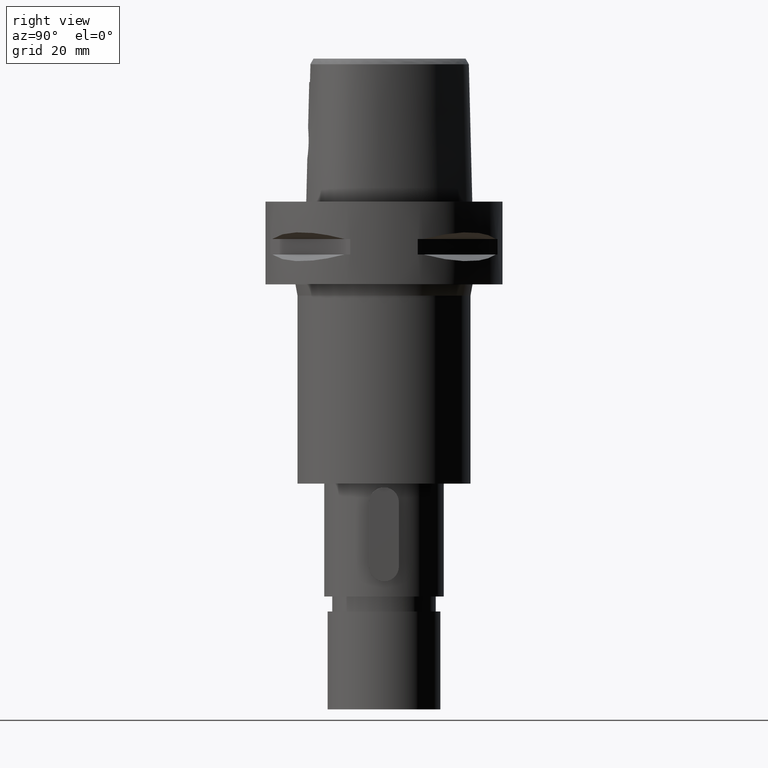
[diagram: clean part render]
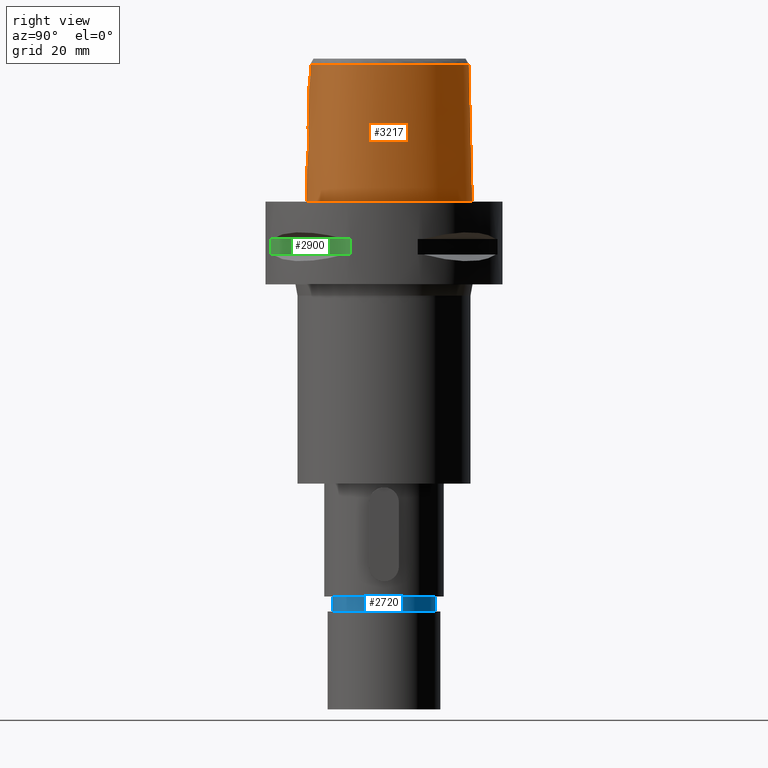
[diagram: same view with three faces highlighted in distinct colors, each labeled with its STEP entity id]
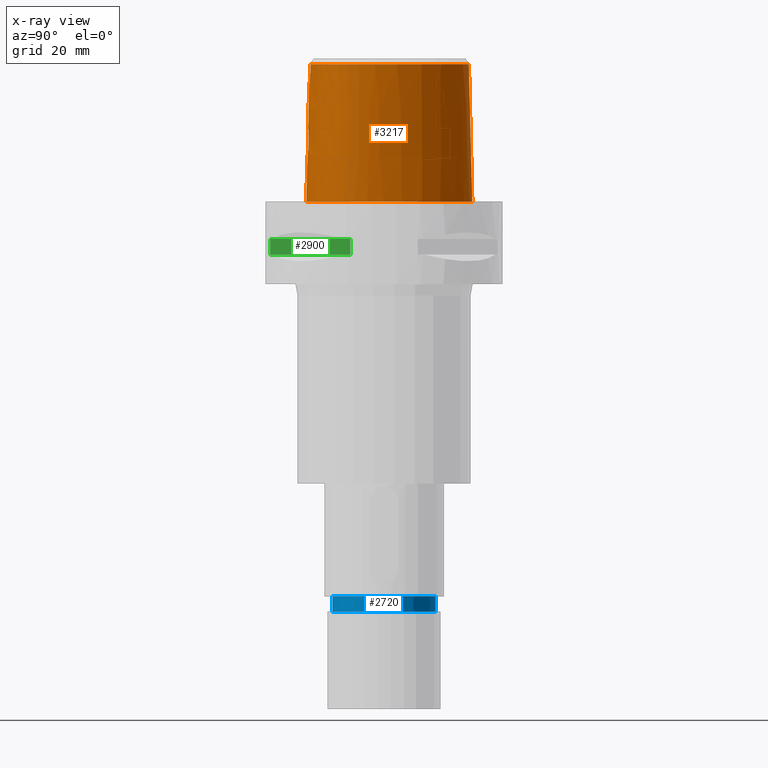
[diagram: x-ray of the same camera — body ghosted, the three highlighted faces saturated]
A machine part, right view with three faces highlighted in distinct colors.
The next image is the same camera in x-ray (body ghosted, the three faces saturated) — at least one of them is partly hidden behind the body in this view.
Their STEP definitions:

[orange] entity #3217 — the highlighted face is a freeform B-spline surface patch.
#130=CARTESIAN_POINT('',(3.637738219117E0,-1.956971420299E1,3.652185956444E1));
#140=CARTESIAN_POINT('',(-1.753181421785E-11,2.256201468012E1,
3.652186680744E1));
#141=CARTESIAN_POINT('',(4.062540555873E-1,2.256201468011E1,3.652186680744E1));
#142=CARTESIAN_POINT('',(1.216573050318E0,2.251889771860E1,3.652180802244E1));
#143=CARTESIAN_POINT('',(2.504332833959E0,2.231359579355E1,3.652187345207E1));
#144=CARTESIAN_POINT('',(3.859790465276E0,2.194987119911E1,3.652186653026E1));
#145=CARTESIAN_POINT('',(5.292823414288E0,2.140670697424E1,3.652186801805E1));
#146=CARTESIAN_POINT('',(6.819958569990E0,2.064945833142E1,3.652187263606E1));
#147=CARTESIAN_POINT('',(8.392945896568E0,1.967400029284E1,3.652186494990E1));
#148=CARTESIAN_POINT('',(9.955593008170E0,1.850440888234E1,3.652187140750E1));
#149=CARTESIAN_POINT('',(1.154632718848E1,1.710268339803E1,3.652186086915E1));
#150=CARTESIAN_POINT('',(1.325568580448E1,1.532875142400E1,3.652186215697E1));
#151=CARTESIAN_POINT('',(1.494827950634E1,1.324381054885E1,3.652187034734E1));
#152=CARTESIAN_POINT('',(1.652066409179E1,1.094297743653E1,3.652186548784E1));
#153=CARTESIAN_POINT('',(1.791898911244E1,8.488866497842E0,3.652185660321E1));
#154=CARTESIAN_POINT('',(1.909272403499E1,5.972285834336E0,3.652187125266E1));
#155=CARTESIAN_POINT('',(2.001310668239E1,3.476443396984E0,3.652186304764E1));
#156=CARTESIAN_POINT('',(2.064864158466E1,1.175991673316E0,3.652186435253E1));
#157=CARTESIAN_POINT('',(2.104401821338E1,-8.916418155083E-1,3.652186882671E1));
#158=CARTESIAN_POINT('',(2.125164398498E1,-2.813987507741E0,3.652186430428E1));
#159=CARTESIAN_POINT('',(2.128797773766E1,-4.639034045551E0,3.652187256162E1));
#160=CARTESIAN_POINT('',(2.116175335097E1,-6.315399331157E0,3.652186529946E1));
#161=CARTESIAN_POINT('',(2.090043174514E1,-7.807379882939E0,3.652186827298E1));
#162=CARTESIAN_POINT('',(2.052348070340E1,-9.146940143530E0,3.652187404411E1));
#163=CARTESIAN_POINT('',(2.004799086113E1,-1.034362614827E1,3.652187150710E1));
#164=CARTESIAN_POINT('',(1.947911968141E1,-1.142718407298E1,3.652186516528E1));
#165=CARTESIAN_POINT('',(1.879064358854E1,-1.245260829764E1,3.652185128698E1));
#166=CARTESIAN_POINT('',(1.794872451414E1,-1.346026529798E1,3.652187506744E1));
#167=CARTESIAN_POINT('',(1.693160188539E1,-1.444946700673E1,3.652186367398E1));
#168=CARTESIAN_POINT('',(1.571434713536E1,-1.541671945248E1,3.652187079176E1));
#169=CARTESIAN_POINT('',(1.426651668507E1,-1.635263780446E1,3.652186986820E1));
#170=CARTESIAN_POINT('',(1.261247700562E1,-1.721392566694E1,3.652186364726E1));
#171=CARTESIAN_POINT('',(1.079226439984E1,-1.796989231331E1,3.652187882669E1));
#172=CARTESIAN_POINT('',(8.744555956044E0,-1.863514493928E1,3.652185431055E1));
#173=CARTESIAN_POINT('',(6.323229657747E0,-1.920768959876E1,3.652188265077E1));
#174=CARTESIAN_POINT('',(4.555854921006E0,-1.947189191972E1,3.652183597715E1));
#175=CARTESIAN_POINT('',(3.637738219117E0,-1.956971420299E1,3.652185956444E1));
#247=DIRECTION('',(-1.665636293796E-9,-2.499140646182E-2,-9.996876660253E-1));
#248=VECTOR('',#247,1.225382733632E1);
#249=CARTESIAN_POINT('',(2.041042029991E-8,-1.988004246002E1,3.180000004972E1));
#250=LINE('',#249,#248);
#268=CARTESIAN_POINT('',(-8.773959669286E-13,-2.038876923348E1,1.145E1));
#273=DIRECTION('',(-5.367607158442E-13,-2.499051295390E-2,-9.996876883619E-1));
#274=VECTOR('',#273,1.145357708542E1);
#275=CARTESIAN_POINT('',(-8.773959669286E-13,-2.038876923348E1,1.145E1));
#276=LINE('',#275,#274);
#296=CARTESIAN_POINT('',(-7.025226202276E-12,-2.0675E1,7.423691291327E-14));
#297=CARTESIAN_POINT('',(9.696449193971E-1,-2.0675E1,7.423691291327E-14));
#298=CARTESIAN_POINT('',(2.869359218279E0,-2.059664892280E1,
-3.445347118589E-14));
#299=CARTESIAN_POINT('',(5.628890464365E0,-2.025948190435E1,0.E0));
#300=CARTESIAN_POINT('',(8.212389498786E0,-1.972495271961E1,0.E0));
#301=CARTESIAN_POINT('',(1.055590877096E1,-1.902992880187E1,0.E0));
#302=CARTESIAN_POINT('',(1.262648749775E1,-1.821494749687E1,0.E0));
#303=CARTESIAN_POINT('',(1.442632796445E1,-1.731409880463E1,0.E0));
#304=CARTESIAN_POINT('',(1.597826980356E1,-1.634849947215E1,0.E0));
#305=CARTESIAN_POINT('',(1.729272679183E1,-1.534476430662E1,0.E0));
#306=CARTESIAN_POINT('',(1.840631071867E1,-1.430636057348E1,0.E0));
#307=CARTESIAN_POINT('',(1.934064837732E1,-1.323816028795E1,0.E0));
#308=CARTESIAN_POINT('',(2.012478674005E1,-1.212673791652E1,0.E0));
#309=CARTESIAN_POINT('',(2.077619553208E1,-1.094577442846E1,0.E0));
#310=CARTESIAN_POINT('',(2.130480808583E1,-9.682349975254E0,0.E0));
#311=CARTESIAN_POINT('',(2.172374489730E1,-8.295275100954E0,0.E0));
#312=CARTESIAN_POINT('',(2.202311183728E1,-6.764072560865E0,0.E0));
#313=CARTESIAN_POINT('',(2.218684134189E1,-5.054739177557E0,0.E0));
#314=CARTESIAN_POINT('',(2.218812470964E1,-3.165687813018E0,0.E0));
#315=CARTESIAN_POINT('',(2.199906235253E1,-1.084924122012E0,0.E0));
#316=CARTESIAN_POINT('',(2.158831508849E1,1.183691833102E0,0.E0));
#317=CARTESIAN_POINT('',(2.092945109464E1,3.612485699932E0,0.E0));
#318=CARTESIAN_POINT('',(2.000600956625E1,6.153725564804E0,0.E0));
#319=CARTESIAN_POINT('',(1.882402336048E1,8.726443176908E0,0.E0));
#320=CARTESIAN_POINT('',(1.741188696276E1,1.123977895859E1,0.E0));
#321=CARTESIAN_POINT('',(1.581553544803E1,1.360753654784E1,0.E0));
#322=CARTESIAN_POINT('',(1.410265394990E1,1.574816738736E1,0.E0));
#323=CARTESIAN_POINT('',(1.233221734629E1,1.761876537074E1,0.E0));
#324=CARTESIAN_POINT('',(1.056748029132E1,1.919100964483E1,0.E0));
#325=CARTESIAN_POINT('',(8.844920598074E0,2.047448750360E1,0.E0));
#326=CARTESIAN_POINT('',(7.188482811189E0,2.148988621512E1,0.E0));
#327=CARTESIAN_POINT('',(5.609331832987E0,2.226541949591E1,0.E0));
#328=CARTESIAN_POINT('',(4.104370529806E0,2.283161244340E1,0.E0));
#329=CARTESIAN_POINT('',(2.671679869061E0,2.321244146092E1,0.E0));
#330=CARTESIAN_POINT('',(1.305808838521E0,2.342910934149E1,
-3.313098001873E-14));
#331=CARTESIAN_POINT('',(4.290405100522E-1,2.347499999999E1,
7.138734048340E-14));
#332=CARTESIAN_POINT('',(4.298359254040E-11,2.347499999999E1,
7.138734048340E-14));
#337=CARTESIAN_POINT('',(4.298359254040E-11,2.347499999999E1,
7.138734048340E-14));
#373=CARTESIAN_POINT('',(-7.025226202276E-12,-2.0675E1,7.423691291327E-14));
#1146=CARTESIAN_POINT('',(-8.773959669286E-13,-2.038876923348E1,1.145E1));
#1147=CARTESIAN_POINT('',(3.518410039390E-1,-2.038876923348E1,1.145E1));
#1148=CARTESIAN_POINT('',(1.056002269219E0,-2.037568214282E1,1.154238708990E1));
#1149=CARTESIAN_POINT('',(2.040385422200E0,-2.032131306427E1,1.194792367503E1));
#1150=CARTESIAN_POINT('',(2.891794145479E0,-2.024379318177E1,1.259807706062E1));
#1151=CARTESIAN_POINT('',(3.545775398700E0,-2.016065841224E1,1.344776599254E1));
#1152=CARTESIAN_POINT('',(3.957111572053E0,-2.009016928170E1,1.443938952574E1));
#1153=CARTESIAN_POINT('',(4.096327614963E0,-2.004685475213E1,1.549997055253E1));
#1154=CARTESIAN_POINT('',(3.957577704511E0,-2.003680793094E1,1.655714913641E1));
#1155=CARTESIAN_POINT('',(3.549577819491E0,-2.005726835327E1,1.754497021868E1));
#1156=CARTESIAN_POINT('',(2.899403737140E0,-2.009772754991E1,1.839411373098E1));
#1157=CARTESIAN_POINT('',(2.049555943288E0,-2.014302748467E1,1.904720420744E1));
#1158=CARTESIAN_POINT('',(1.060000729701E0,-2.017769463663E1,1.945708074101E1));
#1159=CARTESIAN_POINT('',(3.531896813643E-1,-2.018628283969E1,1.955E1));
#1160=CARTESIAN_POINT('',(0.E0,-2.018628283969E1,1.955E1));
#1165=CARTESIAN_POINT('',(3.736696120838E0,-1.967778323292E1,3.180000004973E1));
#1166=CARTESIAN_POINT('',(3.726005752326E0,-1.966575923680E1,3.232454431401E1));
#1167=CARTESIAN_POINT('',(3.704089546608E0,-1.964135163374E1,3.337368958252E1));
#1168=CARTESIAN_POINT('',(3.671106187705E0,-1.960533295284E1,3.494764256979E1));
#1169=CARTESIAN_POINT('',(3.649042743234E0,-1.958170238761E1,3.599710209057E1));
#1170=CARTESIAN_POINT('',(3.637738219117E0,-1.956971420299E1,3.652185956444E1));
#1175=DIRECTION('',(1.656446189114E-12,2.499051290963E-2,-9.996876883630E-1));
#1176=VECTOR('',#1175,3.653327657485E1);
#1177=CARTESIAN_POINT('',(-1.753181421785E-11,2.256201468012E1,
3.652186680744E1));
#1178=LINE('',#1177,#1176);
#1544=CARTESIAN_POINT('',(3.736696120838E0,-1.967778323292E1,3.180000004973E1));
#1545=CARTESIAN_POINT('',(3.322953877844E0,-1.972294683117E1,3.180000004973E1));
#1546=CARTESIAN_POINT('',(2.494485023251E0,-1.979770229043E1,3.179999998342E1));
#1547=CARTESIAN_POINT('',(1.247889117313E0,-1.986528006854E1,3.179999998343E1));
#1548=CARTESIAN_POINT('',(4.161790006858E-1,-1.988004246001E1,
3.180000004972E1));
#1549=CARTESIAN_POINT('',(2.041042029991E-8,-1.988004246002E1,
3.180000004972E1));
#1554=CARTESIAN_POINT('',(2.041042029991E-8,-1.988004246002E1,
3.180000004972E1));
#1591=VERTEX_POINT('',#130);
#1592=VERTEX_POINT('',#1165);
#1598=CARTESIAN_POINT('',(-1.753181421785E-11,2.256201468012E1,
3.652186680744E1));
#1599=VERTEX_POINT('',#1598);
#1600=VERTEX_POINT('',#337);
#1601=VERTEX_POINT('',#373);
#1602=VERTEX_POINT('',#1554);
#1603=CARTESIAN_POINT('',(0.E0,-2.018628283969E1,1.955E1));
#1604=VERTEX_POINT('',#1603);
#1605=VERTEX_POINT('',#268);
#3104=CARTESIAN_POINT('',(-6.840631435226E-1,-2.068668115881E1,
-7.304374758141E-1));
#3105=CARTESIAN_POINT('',(-6.779734153687E-1,-2.037023492517E1,
1.193047877163E1));
#3106=CARTESIAN_POINT('',(-6.718836872148E-1,-2.005378869153E1,
2.459139501907E1));
#3107=CARTESIAN_POINT('',(-6.657939590610E-1,-1.973734245789E1,
3.725231126652E1));
#3108=CARTESIAN_POINT('',(-4.561077449031E-1,-2.069106755111E1,
-7.304374758141E-1));
#3109=CARTESIAN_POINT('',(-4.520500681734E-1,-2.037458456203E1,
1.193047877163E1));
#3110=CARTESIAN_POINT('',(-4.479923914436E-1,-2.005810157295E1,
2.459139501907E1));
#3111=CARTESIAN_POINT('',(-4.439347147139E-1,-1.974161858387E1,
3.725231126652E1));
#3112=CARTESIAN_POINT('',(1.886855603002E0,-2.071358919030E1,
-7.304374758141E-1));
#3113=CARTESIAN_POINT('',(1.870063866735E0,-2.039691460076E1,1.193047877163E1));
#3114=CARTESIAN_POINT('',(1.853272130467E0,-2.008024001122E1,2.459139501907E1));
#3115=CARTESIAN_POINT('',(1.836480394200E0,-1.976356542169E1,3.725231126652E1));
#3116=CARTESIAN_POINT('',(6.344715575792E0,-2.031619964463E1,
-7.304374758141E-1));
#3117=CARTESIAN_POINT('',(6.288476595074E0,-2.000290580450E1,1.193047877163E1));
#3118=CARTESIAN_POINT('',(6.232237614356E0,-1.968961196437E1,2.459139501907E1));
#3119=CARTESIAN_POINT('',(6.175998633637E0,-1.937631812424E1,3.725231126652E1));
#3120=CARTESIAN_POINT('',(1.123887130078E1,-1.891049775533E1,
-7.304374758141E-1));
#3121=CARTESIAN_POINT('',(1.113012658676E1,-1.861140124626E1,1.193047877163E1));
#3122=CARTESIAN_POINT('',(1.102138187275E1,-1.831230473720E1,2.459139501907E1));
#3123=CARTESIAN_POINT('',(1.091263715873E1,-1.801320822813E1,3.725231126652E1));
#3124=CARTESIAN_POINT('',(1.468244496866E1,-1.723001772585E1,
-7.304374758141E-1));
#3125=CARTESIAN_POINT('',(1.452531267788E1,-1.695413756102E1,1.193047877163E1));
#3126=CARTESIAN_POINT('',(1.436818038711E1,-1.667825739619E1,2.459139501907E1));
#3127=CARTESIAN_POINT('',(1.421104809633E1,-1.640237723136E1,3.725231126652E1));
#3128=CARTESIAN_POINT('',(1.697022730794E1,-1.569280482713E1,
-7.304374758141E-1));
#3129=CARTESIAN_POINT('',(1.677374388659E1,-1.544292480278E1,1.193047877163E1));
#3130=CARTESIAN_POINT('',(1.657726046524E1,-1.519304477843E1,2.459139501907E1));
#3131=CARTESIAN_POINT('',(1.638077704389E1,-1.494316475408E1,3.725231126652E1));
#3132=CARTESIAN_POINT('',(1.858171406216E1,-1.418198046199E1,
-7.304374758141E-1));
#3133=CARTESIAN_POINT('',(1.835112160932E1,-1.396357042290E1,1.193047877163E1));
#3134=CARTESIAN_POINT('',(1.812052915649E1,-1.374516038381E1,2.459139501907E1));
#3135=CARTESIAN_POINT('',(1.788993670365E1,-1.352675034472E1,3.725231126652E1));
#3136=CARTESIAN_POINT('',(1.966427014214E1,-1.283600704374E1,
-7.304374758141E-1));
#3137=CARTESIAN_POINT('',(1.940779776146E1,-1.264961932735E1,1.193047877163E1));
#3138=CARTESIAN_POINT('',(1.915132538079E1,-1.246323161097E1,2.459139501907E1));
#3139=CARTESIAN_POINT('',(1.889485300012E1,-1.227684389459E1,3.725231126652E1));
#3140=CARTESIAN_POINT('',(2.036546124071E1,-1.175800452953E1,
-7.304374758141E-1));
#3141=CARTESIAN_POINT('',(2.009084481827E1,-1.159945466351E1,1.193047877163E1));
#3142=CARTESIAN_POINT('',(1.981622839584E1,-1.144090479749E1,2.459139501907E1));
#3143=CARTESIAN_POINT('',(1.954161197340E1,-1.128235493147E1,3.725231126652E1));
#3144=CARTESIAN_POINT('',(2.094844325400E1,-1.061175396791E1,
-7.304374758141E-1));
#3145=CARTESIAN_POINT('',(2.065879056802E1,-1.048283623245E1,1.193047877163E1));
#3146=CARTESIAN_POINT('',(2.036913788203E1,-1.035391849699E1,2.459139501907E1));
#3147=CARTESIAN_POINT('',(2.007948519604E1,-1.022500076153E1,3.725231126652E1));
#3148=CARTESIAN_POINT('',(2.157281238773E1,-9.001246193730E0,
-7.304374758141E-1));
#3149=CARTESIAN_POINT('',(2.126836750875E1,-8.910752273245E0,1.193047877163E1));
#3150=CARTESIAN_POINT('',(2.096392262977E1,-8.820258352760E0,2.459139501907E1));
#3151=CARTESIAN_POINT('',(2.065947775079E1,-8.729764432275E0,3.725231126652E1));
#3152=CARTESIAN_POINT('',(2.207548128605E1,-6.850245534757E0,
-7.304374758141E-1));
#3153=CARTESIAN_POINT('',(2.176083721035E1,-6.805026057295E0,1.193047877163E1));
#3154=CARTESIAN_POINT('',(2.144619313464E1,-6.759806579833E0,2.459139501907E1));
#3155=CARTESIAN_POINT('',(2.113154905894E1,-6.714587102371E0,3.725231126652E1));
#3156=CARTESIAN_POINT('',(2.226285556027E1,-4.100361500079E0,
-7.304374758141E-1));
#3157=CARTESIAN_POINT('',(2.194536987704E1,-4.102220498713E0,1.193047877163E1));
#3158=CARTESIAN_POINT('',(2.162788419380E1,-4.104079497347E0,2.459139501907E1));
#3159=CARTESIAN_POINT('',(2.131039851056E1,-4.105938495981E0,3.725231126652E1));
#3160=CARTESIAN_POINT('',(2.199640701090E1,-2.778990171174E-1,
-7.304374758141E-1));
#3161=CARTESIAN_POINT('',(2.168301110491E1,-3.332743870815E-1,
1.193047877163E1));
#3162=CARTESIAN_POINT('',(2.136961519892E1,-3.886497570456E-1,
2.459139501907E1));
#3163=CARTESIAN_POINT('',(2.105621929293E1,-4.440251270097E-1,
3.725231126652E1));
#3164=CARTESIAN_POINT('',(2.076670354432E1,4.663413652257E0,
-7.304374758141E-1));
#3165=CARTESIAN_POINT('',(2.046725052861E1,4.555493679790E0,1.193047877163E1));
#3166=CARTESIAN_POINT('',(2.016779751291E1,4.447573707322E0,2.459139501907E1));
#3167=CARTESIAN_POINT('',(1.986834449720E1,4.339653734854E0,3.725231126652E1));
#3168=CARTESIAN_POINT('',(1.808416037874E1,1.044089486958E1,
-7.304374758141E-1));
#3169=CARTESIAN_POINT('',(1.780867315852E1,1.028184213033E1,1.193047877163E1));
#3170=CARTESIAN_POINT('',(1.753318593829E1,1.012278939109E1,2.459139501907E1));
#3171=CARTESIAN_POINT('',(1.725769871807E1,9.963736651840E0,3.725231126652E1));
#3172=CARTESIAN_POINT('',(1.442198651611E1,1.565278599922E1,
-7.304374758141E-1));
#3173=CARTESIAN_POINT('',(1.417879765631E1,1.544741201275E1,1.193047877163E1));
#3174=CARTESIAN_POINT('',(1.393560879652E1,1.524203802628E1,2.459139501907E1));
#3175=CARTESIAN_POINT('',(1.369241993673E1,1.503666403981E1,3.725231126652E1));
#3176=CARTESIAN_POINT('',(1.075753573486E1,1.918839675360E1,
-7.304374758141E-1));
#3177=CARTESIAN_POINT('',(1.055288411421E1,1.894467594123E1,1.193047877163E1));
#3178=CARTESIAN_POINT('',(1.034823249357E1,1.870095512887E1,2.459139501907E1));
#3179=CARTESIAN_POINT('',(1.014358087292E1,1.845723431650E1,3.725231126652E1));
#3180=CARTESIAN_POINT('',(7.580410837575E0,2.133037925849E1,
-7.304374758141E-1));
#3181=CARTESIAN_POINT('',(7.420053181685E0,2.105635752793E1,1.193047877163E1));
#3182=CARTESIAN_POINT('',(7.259695525795E0,2.078233579737E1,2.459139501907E1));
#3183=CARTESIAN_POINT('',(7.099337869906E0,2.050831406681E1,3.725231126652E1));
#3184=CARTESIAN_POINT('',(5.105252914203E0,2.254305023765E1,
-7.304374758141E-1));
#3185=CARTESIAN_POINT('',(4.987110700936E0,2.224795288933E1,1.193047877163E1));
#3186=CARTESIAN_POINT('',(4.868968487670E0,2.195285554101E1,2.459139501907E1));
#3187=CARTESIAN_POINT('',(4.750826274403E0,2.165775819269E1,3.725231126652E1));
#3188=CARTESIAN_POINT('',(2.568271204731E0,2.331126237889E1,
-7.304374758141E-1));
#3189=CARTESIAN_POINT('',(2.503210923302E0,2.299958947814E1,1.193047877163E1));
#3190=CARTESIAN_POINT('',(2.438150641872E0,2.268791657740E1,2.459139501907E1));
#3191=CARTESIAN_POINT('',(2.373090360443E0,2.237624367665E1,3.725231126652E1));
#3192=CARTESIAN_POINT('',(6.155340737761E-1,2.351883497244E1,
-7.304374758141E-1));
#3193=CARTESIAN_POINT('',(5.990982059483E-1,2.320165477308E1,1.193047877163E1));
#3194=CARTESIAN_POINT('',(5.826623381205E-1,2.288447457373E1,2.459139501907E1));
#3195=CARTESIAN_POINT('',(5.662264702927E-1,2.256729437437E1,3.725231126652E1));
#3196=CARTESIAN_POINT('',(-4.812391252064E-1,2.348607175778E1,
-7.304374758141E-1));
#3197=CARTESIAN_POINT('',(-4.685452001015E-1,2.316976082928E1,
1.193047877163E1));
#3198=CARTESIAN_POINT('',(-4.558512749967E-1,2.285344990079E1,
2.459139501907E1));
#3199=CARTESIAN_POINT('',(-4.431573498918E-1,2.253713897230E1,
3.725231126652E1));
#3200=CARTESIAN_POINT('',(-7.217521644624E-1,2.347150798188E1,
-7.304374758141E-1));
#3201=CARTESIAN_POINT('',(-7.025952914E-1,2.315559754271E1,1.193047877163E1));
#3202=CARTESIAN_POINT('',(-6.834384183375E-1,2.283968710354E1,
2.459139501907E1));
#3203=CARTESIAN_POINT('',(-6.642815452751E-1,2.252377666438E1,
3.725231126652E1));
#3204=B_SPLINE_SURFACE_WITH_KNOTS('',3,3,((#3104,#3105,#3106,#3107),(#3108,
#3109,#3110,#3111),(#3112,#3113,#3114,#3115),(#3116,#3117,#3118,#3119),(#3120,
#3121,#3122,#3123),(#3124,#3125,#3126,#3127),(#3128,#3129,#3130,#3131),(#3132,
#3133,#3134,#3135),(#3136,#3137,#3138,#3139),(#3140,#3141,#3142,#3143),(#3144,
#3145,#3146,#3147),(#3148,#3149,#3150,#3151),(#3152,#3153,#3154,#3155),(#3156,
#3157,#3158,#3159),(#3160,#3161,#3162,#3163),(#3164,#3165,#3166,#3167),(#3168,
#3169,#3170,#3171),(#3172,#3173,#3174,#3175),(#3176,#3177,#3178,#3179),(#3180,
#3181,#3182,#3183),(#3184,#3185,#3186,#3187),(#3188,#3189,#3190,#3191),(#3192,
#3193,#3194,#3195),(#3196,#3197,#3198,#3199),(#3200,#3201,#3202,#3203)),
.UNSPECIFIED.,.F.,.F.,.F.,(4,1,1,1,1,1,1,1,1,1,1,1,1,1,1,1,1,1,1,1,1,1,4),(4,4),
(-8.985960173568E-3,0.E0,8.333333333339E-2,1.666666666667E-1,2.083333333333E-1,
2.5E-1,2.916666666667E-1,3.125E-1,3.333333333332E-1,3.541666666666E-1,
3.749999999999E-1,4.166666666666E-1,4.583333333332E-1,4.999999999999E-1,
5.833333333331E-1,6.666666666665E-1,7.499999999998E-1,8.333333333330E-1,
8.749999999997E-1,9.166666666664E-1,9.583333333330E-1,1.E0,1.011710456763E0),(
6.568183174432E-9,9.999996650227E-1),.UNSPECIFIED.);
#3205=ORIENTED_EDGE('',*,*,#2454,.F.);
#3206=ORIENTED_EDGE('',*,*,#2438,.F.);
#3208=ORIENTED_EDGE('',*,*,#3207,.T.);
#3209=ORIENTED_EDGE('',*,*,#2434,.F.);
#3211=ORIENTED_EDGE('',*,*,#3210,.F.);
#3212=ORIENTED_EDGE('',*,*,#1797,.T.);
#3213=ORIENTED_EDGE('',*,*,#2063,.F.);
#3214=ORIENTED_EDGE('',*,*,#2428,.T.);
#3215=EDGE_LOOP('',(#3205,#3206,#3208,#3209,#3211,#3212,#3213,#3214));
#3216=FACE_OUTER_BOUND('',#3215,.F.);
#176=B_SPLINE_CURVE_WITH_KNOTS('',3,(#140,#141,#142,#143,#144,#145,#146,#147,
#148,#149,#150,#151,#152,#153,#154,#155,#156,#157,#158,#159,#160,#161,#162,#163,
#164,#165,#166,#167,#168,#169,#170,#171,#172,#173,#174,#175),.UNSPECIFIED.,.F.,
.F.,(4,1,1,1,1,1,1,1,1,1,1,1,1,1,1,1,1,1,1,1,1,1,1,1,1,1,1,1,1,1,1,1,1,4),(0.E0,
3.030303030303E-2,6.060606060606E-2,9.090909090909E-2,1.212121212121E-1,
1.515151515152E-1,1.818181818182E-1,2.121212121212E-1,2.424242424242E-1,
2.727272727273E-1,3.030303030303E-1,3.333333333333E-1,3.636363636364E-1,
3.939393939394E-1,4.242424242424E-1,4.545454545455E-1,4.848484848485E-1,
5.151515151515E-1,5.454545454545E-1,5.757575757576E-1,6.060606060606E-1,
6.363636363636E-1,6.666666666667E-1,6.969696969697E-1,7.272727272727E-1,
7.575757575758E-1,7.878787878788E-1,8.181818181818E-1,8.484848484848E-1,
8.787878787879E-1,9.090909090909E-1,9.393939393939E-1,9.696969696970E-1,1.E0),
.UNSPECIFIED.);
#333=B_SPLINE_CURVE_WITH_KNOTS('',3,(#296,#297,#298,#299,#300,#301,#302,#303,
#304,#305,#306,#307,#308,#309,#310,#311,#312,#313,#314,#315,#316,#317,#318,#319,
#320,#321,#322,#323,#324,#325,#326,#327,#328,#329,#330,#331,#332),.UNSPECIFIED.,
.F.,.F.,(4,1,1,1,1,1,1,1,1,1,1,1,1,1,1,1,1,1,1,1,1,1,1,1,1,1,1,1,1,1,1,1,1,1,4),
(0.E0,2.941176470588E-2,5.882352941176E-2,8.823529411765E-2,1.176470588235E-1,
1.470588235294E-1,1.764705882353E-1,2.058823529412E-1,2.352941176471E-1,
2.647058823529E-1,2.941176470588E-1,3.235294117647E-1,3.529411764706E-1,
3.823529411765E-1,4.117647058824E-1,4.411764705882E-1,4.705882352941E-1,5.E-1,
5.294117647059E-1,5.588235294118E-1,5.882352941176E-1,6.176470588235E-1,
6.470588235294E-1,6.764705882353E-1,7.058823529412E-1,7.352941176471E-1,
7.647058823529E-1,7.941176470588E-1,8.235294117647E-1,8.529411764706E-1,
8.823529411765E-1,9.117647058824E-1,9.411764705882E-1,9.705882352941E-1,1.E0),
.UNSPECIFIED.);
#1161=B_SPLINE_CURVE_WITH_KNOTS('',3,(#1146,#1147,#1148,#1149,#1150,#1151,#1152,
#1153,#1154,#1155,#1156,#1157,#1158,#1159,#1160),.UNSPECIFIED.,.F.,.F.,(4,1,1,1,
1,1,1,1,1,1,1,1,4),(0.E0,8.333333333333E-2,1.666666666667E-1,2.5E-1,
3.333333333333E-1,4.166666666667E-1,5.E-1,5.833333333333E-1,6.666666666667E-1,
7.5E-1,8.333333333333E-1,9.166666666667E-1,1.E0),.UNSPECIFIED.);
#1171=B_SPLINE_CURVE_WITH_KNOTS('',3,(#1165,#1166,#1167,#1168,#1169,#1170),
.UNSPECIFIED.,.F.,.F.,(4,1,1,4),(0.E0,3.333333333333E-1,6.666666666667E-1,1.E0),
.UNSPECIFIED.);
#1550=B_SPLINE_CURVE_WITH_KNOTS('',3,(#1544,#1545,#1546,#1547,#1548,#1549),
.UNSPECIFIED.,.F.,.F.,(4,1,1,4),(0.E0,3.333333333333E-1,6.666666666667E-1,1.E0),
.UNSPECIFIED.);
#1797=EDGE_CURVE('',#1592,#1591,#1171,.T.);
#2063=EDGE_CURVE('',#1599,#1591,#176,.T.);
#2428=EDGE_CURVE('',#1599,#1600,#1178,.T.);
#2434=EDGE_CURVE('',#1602,#1604,#250,.T.);
#2438=EDGE_CURVE('',#1605,#1601,#276,.T.);
#2454=EDGE_CURVE('',#1601,#1600,#333,.T.);
#3207=EDGE_CURVE('',#1605,#1604,#1161,.T.);
#3210=EDGE_CURVE('',#1592,#1602,#1550,.T.);
#3217=ADVANCED_FACE('',(#3216),#3204,.T.);

[blue] entity #2720 — the highlighted cylindrical surface (partial cylindrical patch) has radius 13.75 mm, axis along (0, 0, -1).
#644=CARTESIAN_POINT('',(0.E0,1.307310458090E-14,-1.05E2));
#645=DIRECTION('',(0.E0,0.E0,-1.E0));
#646=DIRECTION('',(0.E0,1.E0,0.E0));
#647=AXIS2_PLACEMENT_3D('',#644,#645,#646);
#660=DIRECTION('',(0.E0,0.E0,-1.E0));
#661=VECTOR('',#660,4.E0);
#662=CARTESIAN_POINT('',(0.E0,1.375E1,-1.05E2));
#663=LINE('',#662,#661);
#667=DIRECTION('',(0.E0,0.E0,-1.E0));
#668=VECTOR('',#667,4.E0);
#669=CARTESIAN_POINT('',(0.E0,-1.375E1,-1.05E2));
#670=LINE('',#669,#668);
#698=CARTESIAN_POINT('',(0.E0,1.307310458090E-14,-1.09E2));
#699=DIRECTION('',(0.E0,0.E0,1.E0));
#700=DIRECTION('',(0.E0,-1.E0,0.E0));
#701=AXIS2_PLACEMENT_3D('',#698,#699,#700);
#1695=CARTESIAN_POINT('',(0.E0,1.375E1,-1.05E2));
#1696=CARTESIAN_POINT('',(0.E0,-1.375E1,-1.05E2));
#1697=VERTEX_POINT('',#1695);
#1698=VERTEX_POINT('',#1696);
#1699=CARTESIAN_POINT('',(0.E0,1.375E1,-1.09E2));
#1700=VERTEX_POINT('',#1699);
#1701=CARTESIAN_POINT('',(0.E0,-1.375E1,-1.09E2));
#1702=VERTEX_POINT('',#1701);
#2706=CARTESIAN_POINT('',(0.E0,1.307310458090E-14,6.75E0));
#2707=DIRECTION('',(0.E0,0.E0,-1.E0));
#2708=DIRECTION('',(0.E0,-1.E0,0.E0));
#2709=AXIS2_PLACEMENT_3D('',#2706,#2707,#2708);
#2710=CYLINDRICAL_SURFACE('',#2709,1.375E1);
#2712=ORIENTED_EDGE('',*,*,#2711,.T.);
#2714=ORIENTED_EDGE('',*,*,#2713,.F.);
#2716=ORIENTED_EDGE('',*,*,#2715,.F.);
#2717=ORIENTED_EDGE('',*,*,#2699,.F.);
#2718=EDGE_LOOP('',(#2712,#2714,#2716,#2717));
#2719=FACE_OUTER_BOUND('',#2718,.F.);
#648=CIRCLE('',#647,1.375E1);
#702=CIRCLE('',#701,1.375E1);
#2699=EDGE_CURVE('',#1697,#1698,#648,.T.);
#2711=EDGE_CURVE('',#1697,#1700,#663,.T.);
#2713=EDGE_CURVE('',#1702,#1700,#702,.T.);
#2715=EDGE_CURVE('',#1698,#1702,#670,.T.);
#2720=ADVANCED_FACE('',(#2719),#2710,.T.);

[green] entity #2900 — the highlighted planar face has unit normal (-0.7071, 0.7071, 0).
#442=DIRECTION('',(0.E0,0.E0,-1.E0));
#443=VECTOR('',#442,4.1E0);
#444=CARTESIAN_POINT('',(8.981198972018E0,-3.019251670572E1,-9.95E0));
#445=LINE('',#444,#443);
#460=DIRECTION('',(0.E0,0.E0,1.E0));
#461=VECTOR('',#460,4.1E0);
#462=CARTESIAN_POINT('',(3.019251670572E1,-8.981198972018E0,-1.405E1));
#463=LINE('',#462,#461);
#896=DIRECTION('',(7.071067811865E-1,7.071067811865E-1,0.E0));
#897=VECTOR('',#896,2.999733321480E1);
#898=CARTESIAN_POINT('',(8.981198972018E0,-3.019251670572E1,-9.95E0));
#899=LINE('',#898,#897);
#919=DIRECTION('',(7.071067811865E-1,7.071067811865E-1,0.E0));
#920=VECTOR('',#919,2.999733321480E1);
#921=CARTESIAN_POINT('',(8.981198972018E0,-3.019251670572E1,-1.405E1));
#922=LINE('',#921,#920);
#1642=CARTESIAN_POINT('',(8.981198972020E0,-3.019251670572E1,-9.95E0));
#1643=VERTEX_POINT('',#1642);
#1644=CARTESIAN_POINT('',(8.981198972018E0,-3.019251670572E1,-1.405E1));
#1645=VERTEX_POINT('',#1644);
#1649=CARTESIAN_POINT('',(3.019251670572E1,-8.981198972020E0,-1.405E1));
#1650=VERTEX_POINT('',#1649);
#1651=CARTESIAN_POINT('',(3.019251670572E1,-8.981198972018E0,-9.95E0));
#1652=VERTEX_POINT('',#1651);
#2888=CARTESIAN_POINT('',(3.372899346260E1,-5.444722215136E0,-9.95E0));
#2889=DIRECTION('',(-7.071067811865E-1,7.071067811865E-1,0.E0));
#2890=DIRECTION('',(0.E0,0.E0,-1.E0));
#2891=AXIS2_PLACEMENT_3D('',#2888,#2889,#2890);
#2892=PLANE('',#2891);
#2893=ORIENTED_EDGE('',*,*,#2535,.F.);
#2895=ORIENTED_EDGE('',*,*,#2894,.F.);
#2896=ORIENTED_EDGE('',*,*,#2527,.F.);
#2897=ORIENTED_EDGE('',*,*,#2881,.T.);
#2898=EDGE_LOOP('',(#2893,#2895,#2896,#2897));
#2899=FACE_OUTER_BOUND('',#2898,.F.);
#2527=EDGE_CURVE('',#1643,#1645,#445,.T.);
#2535=EDGE_CURVE('',#1650,#1652,#463,.T.);
#2881=EDGE_CURVE('',#1643,#1652,#899,.T.);
#2894=EDGE_CURVE('',#1645,#1650,#922,.T.);
#2900=ADVANCED_FACE('',(#2899),#2892,.F.);